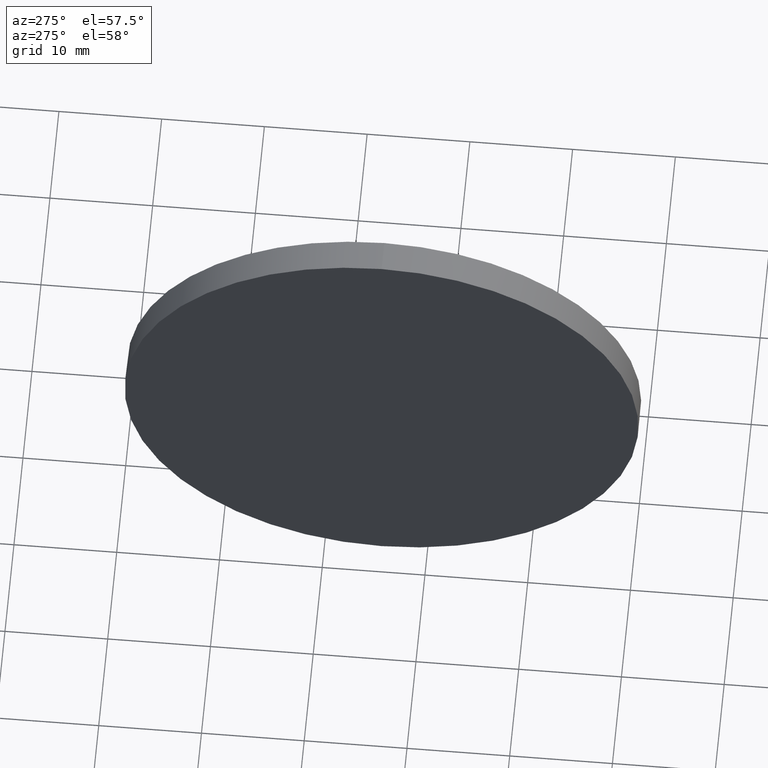
[diagram: clean part render]
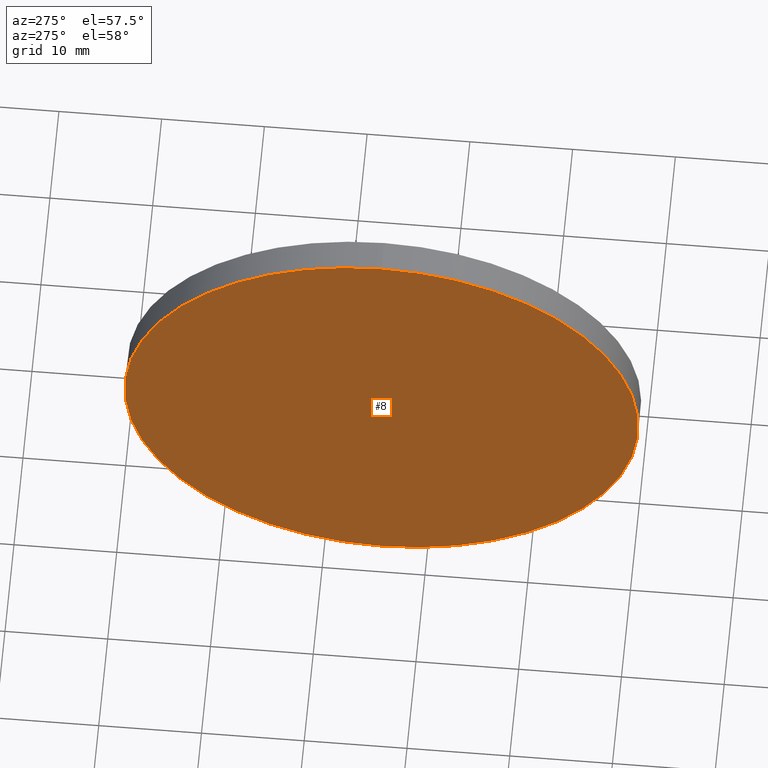
[diagram: same view with one face highlighted and labeled with its STEP entity id]
A machine part, auxiliary view. The second image highlights one B-rep face of the part: STEP entity #8.
In plain terms, the highlighted planar face has unit normal (1, 0, 0).
Its self-contained STEP definition (entity closure, byte-faithful):
#3 = DIRECTION ( 'NONE',  ( 0.0000000000000000000, 0.0000000000000000000, 1.000000000000000000 ) ) ;
#8 = ADVANCED_FACE ( 'NONE', ( #121 ), #155, .F. ) ;
#16 = DIRECTION ( 'NONE',  ( 0.0000000000000000000, 0.0000000000000000000, 1.000000000000000000 ) ) ;
#17 = DIRECTION ( 'NONE',  ( -1.000000000000000000, -0.0000000000000000000, -0.0000000000000000000 ) ) ;
#18 = CARTESIAN_POINT ( 'NONE',  ( 452.2711816770232100, -45.57836235787573300, 25.00000000000000000 ) ) ;
#46 = CARTESIAN_POINT ( 'NONE',  ( 452.2711816770232100, -45.57836235787573300, -25.00000000000000000 ) ) ;
#47 = CIRCLE ( 'NONE', #186, 25.00000000000000000 ) ;
#59 = DIRECTION ( 'NONE',  ( 0.0000000000000000000, 0.0000000000000000000, -1.000000000000000000 ) ) ;
#67 = CARTESIAN_POINT ( 'NONE',  ( 452.2711816770232100, -45.57836235787573300, 0.0000000000000000000 ) ) ;
#79 = EDGE_CURVE ( 'NONE', #147, #88, #47, .T. ) ;
#82 = EDGE_LOOP ( 'NONE', ( #166, #135 ) ) ;
#87 = DIRECTION ( 'NONE',  ( 1.000000000000000000, 0.0000000000000000000, 0.0000000000000000000 ) ) ;
#88 = VERTEX_POINT ( 'NONE', #18 ) ;
#103 = CARTESIAN_POINT ( 'NONE',  ( 452.2711816770232100, -45.57836235787573300, 0.0000000000000000000 ) ) ;
#105 = CIRCLE ( 'NONE', #115, 25.00000000000000000 ) ;
#115 = AXIS2_PLACEMENT_3D ( 'NONE', #175, #17, #16 ) ;
#121 = FACE_OUTER_BOUND ( 'NONE', #82, .T. ) ;
#135 = ORIENTED_EDGE ( 'NONE', *, *, #79, .T. ) ;
#144 = AXIS2_PLACEMENT_3D ( 'NONE', #103, #87, #59 ) ;
#147 = VERTEX_POINT ( 'NONE', #46 ) ;
#155 = PLANE ( 'NONE',  #144 ) ;
#161 = EDGE_CURVE ( 'NONE', #88, #147, #105, .T. ) ;
#166 = ORIENTED_EDGE ( 'NONE', *, *, #161, .T. ) ;
#175 = CARTESIAN_POINT ( 'NONE',  ( 452.2711816770232100, -45.57836235787573300, 0.0000000000000000000 ) ) ;
#185 = DIRECTION ( 'NONE',  ( -1.000000000000000000, -0.0000000000000000000, -0.0000000000000000000 ) ) ;
#186 = AXIS2_PLACEMENT_3D ( 'NONE', #67, #185, #3 ) ;